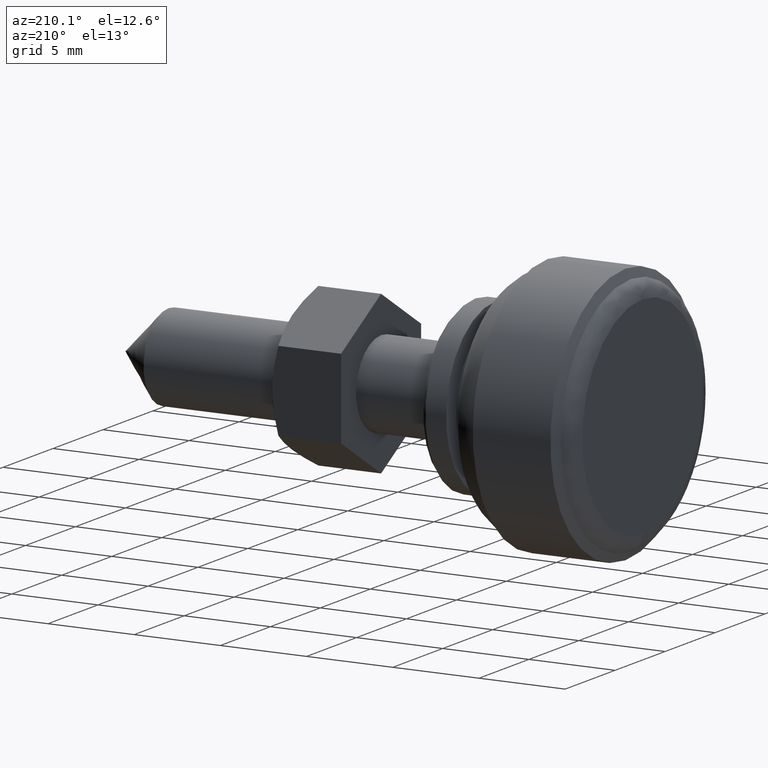
[diagram: clean part render]
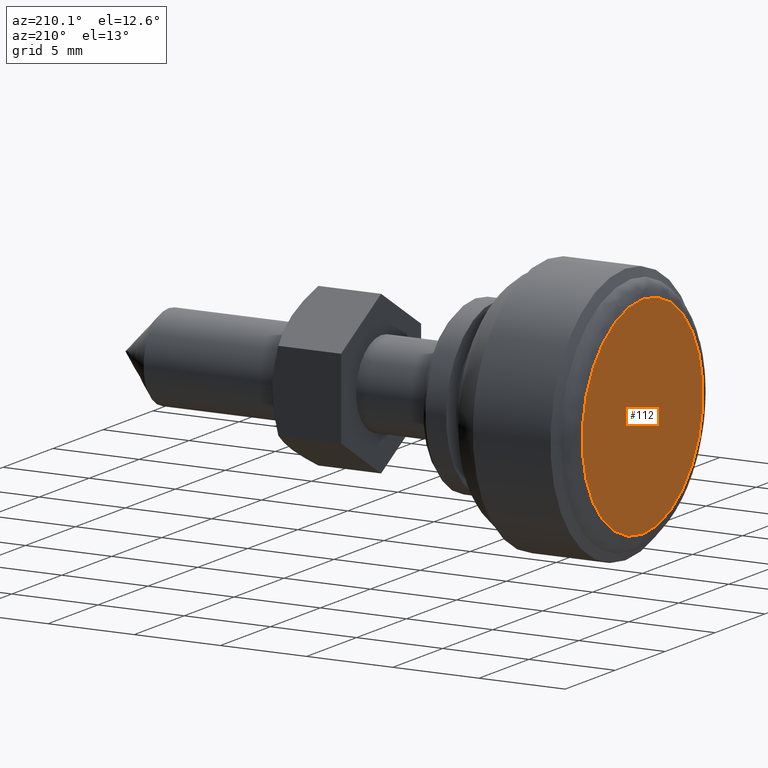
[diagram: same view with one face highlighted and labeled with its STEP entity id]
A machine part, auxiliary view. The second image highlights one B-rep face of the part: STEP entity #112.
In plain terms, the highlighted planar face has unit normal (1, 0, 0).
Its self-contained STEP definition (entity closure, byte-faithful):
#112=ADVANCED_FACE('',(#153),#152,.F.);
#152=PLANE('',#560);
#153=FACE_OUTER_BOUND('',#561,.T.);
#557=CARTESIAN_POINT('',(-3.00000000000E+01,-1.25665828652E+01,7.85993000002E+00));
#558=DIRECTION('',(1.00000000000E+00,0.00000000000E+00,0.00000000000E+00));
#559=DIRECTION('',(0.00000000000E+00,0.00000000000E+00,-1.00000000000E+00));
#560=AXIS2_PLACEMENT_3D('',#557,#558,#559);
#561=EDGE_LOOP('',(#906,#907));
#906=ORIENTED_EDGE('',*,*,#1074,.T.);
#907=ORIENTED_EDGE('',*,*,#1075,.T.);
#1074=EDGE_CURVE('',#1158,#1159,#1160,.T.);
#1075=EDGE_CURVE('',#1159,#1158,#1166,.T.);
#1158=VERTEX_POINT('',#1713);
#1159=VERTEX_POINT('',#1714);
#1160=CIRCLE('',#1718,6.04610000000E+00);
#1166=CIRCLE('',#1722,6.04610000000E+00);
#1713=CARTESIAN_POINT('',(-3.00000000000E+01,0.00000000000E+00,6.04610000002E+00));
#1714=CARTESIAN_POINT('',(-3.00000000000E+01,-2.96059473233E-16,-6.04609999998E+00));
#1715=CARTESIAN_POINT('',(-3.00000000000E+01,0.00000000000E+00,1.79625203600E-11));
#1716=DIRECTION('',(-1.00000000000E+00,0.00000000000E+00,0.00000000000E+00));
#1717=DIRECTION('',(0.00000000000E+00,-1.22460635382E-16,1.00000000000E+00));
#1718=AXIS2_PLACEMENT_3D('',#1715,#1716,#1717);
#1719=CARTESIAN_POINT('',(-3.00000000000E+01,0.00000000000E+00,1.79625203600E-11));
#1720=DIRECTION('',(-1.00000000000E+00,0.00000000000E+00,0.00000000000E+00));
#1721=DIRECTION('',(0.00000000000E+00,-1.22460635382E-16,1.00000000000E+00));
#1722=AXIS2_PLACEMENT_3D('',#1719,#1720,#1721);